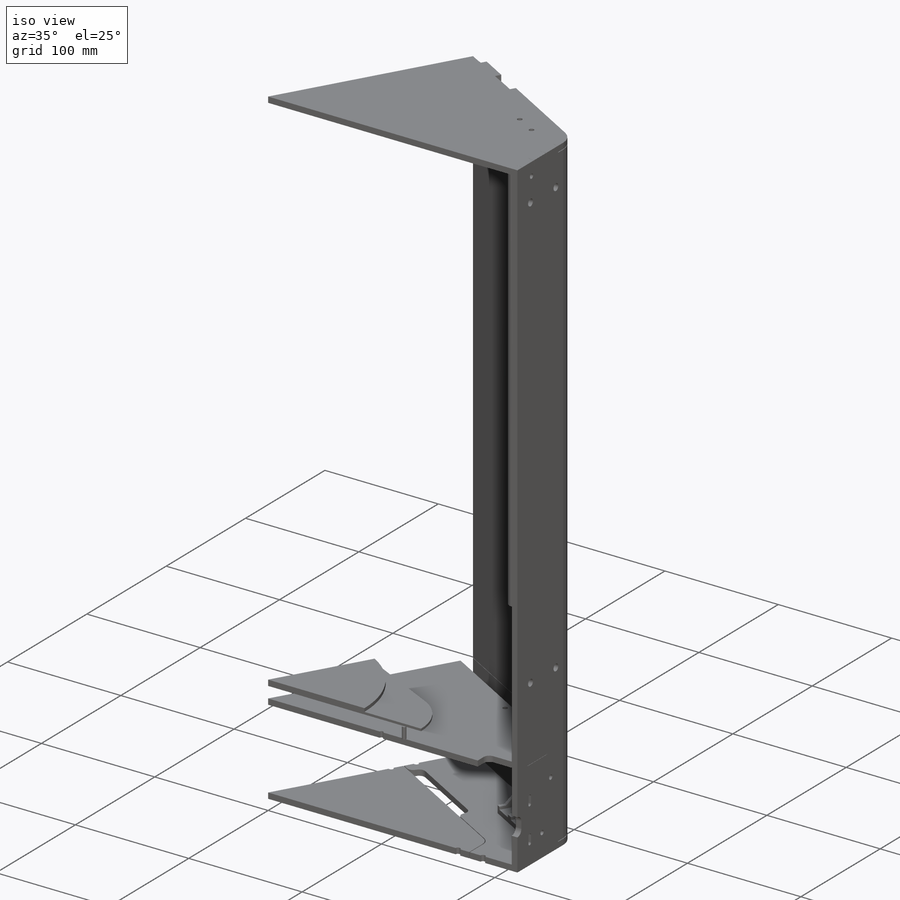
[diagram: iso view]
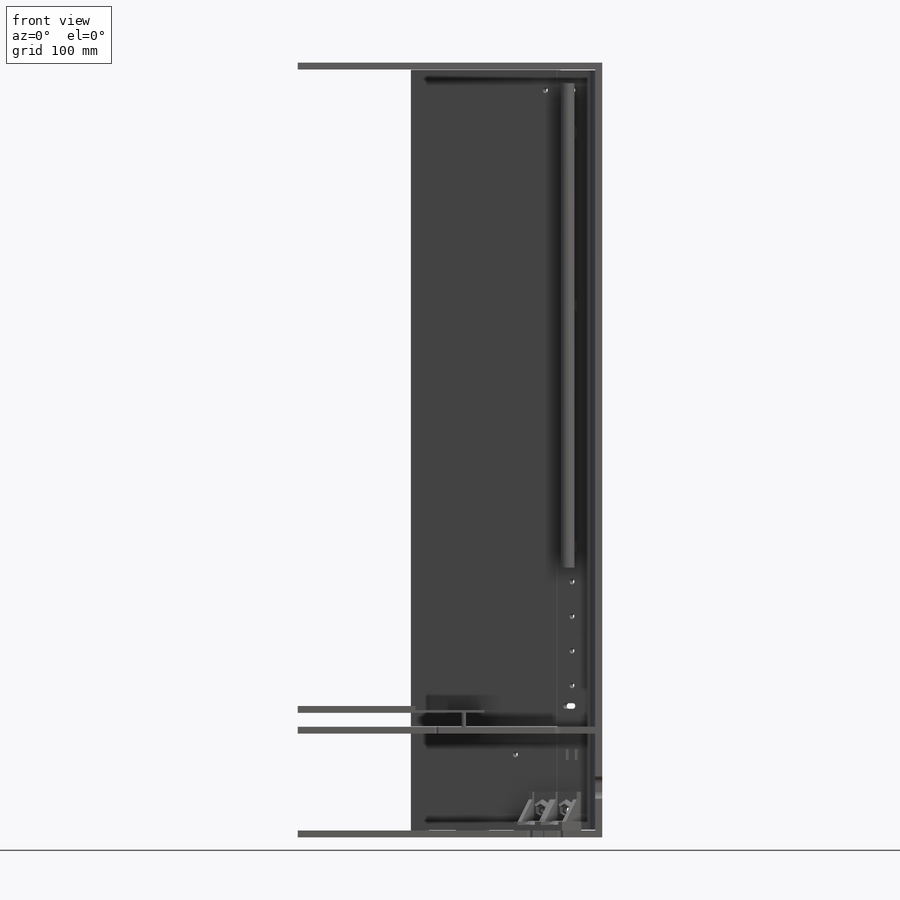
[diagram: front view]
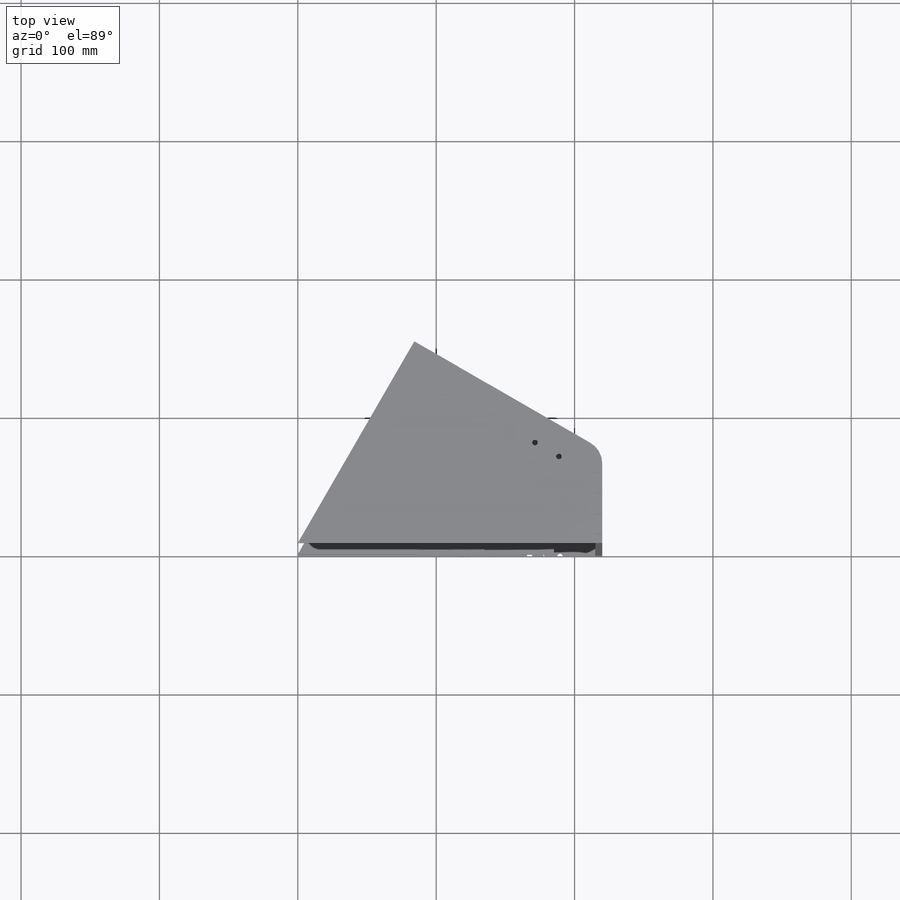
[diagram: top view]
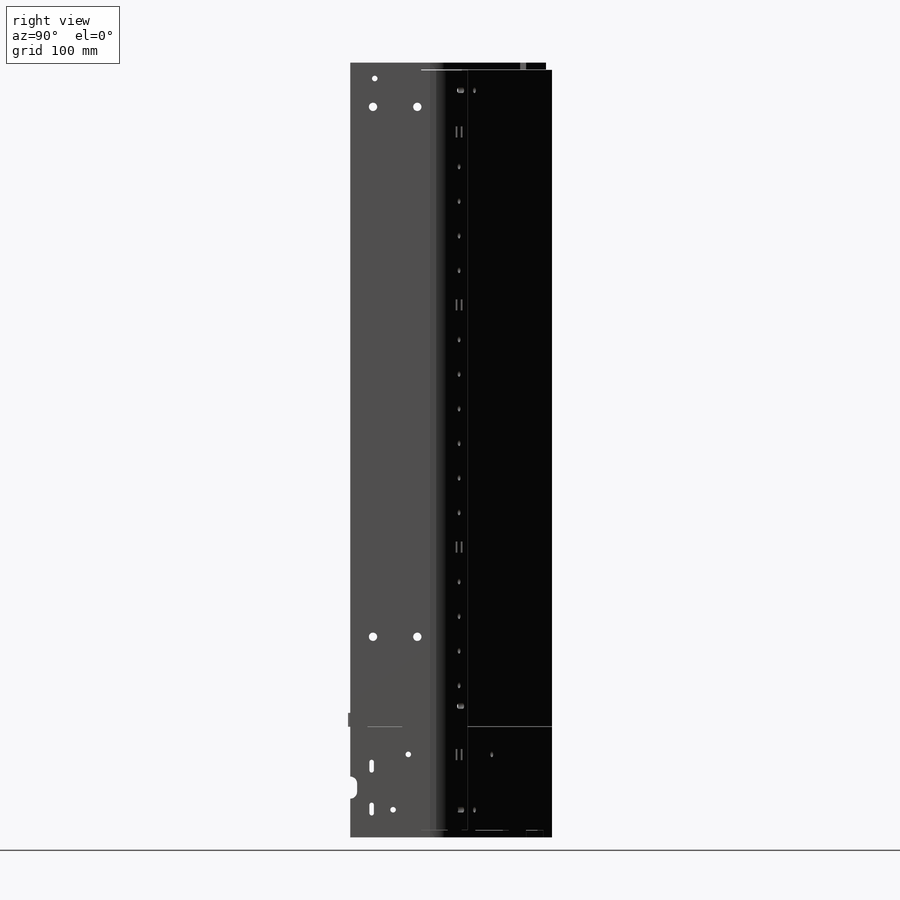
[diagram: right view]
SOLIDWORKS PART (.sldprt)
format: sldprt  version: not decoded by parser v0  size: 2,007,040 bytes
history: native  units: mm
features: sketch x44, cut_extrude x28, extrude x13, chamfer x3, fillet x2, material x1, plane x1, revolve x1, surface_op x1, pattern_linear x1, mirror x1 (+20 scaffold rows collapsed; 8 parser-record rows omitted)
feature tree (124):
  scaffold x20  (default folders/planes/origin — collapsed)
  material  "Material <not specified>"
  sketch  "Sketch1"  dims[c1.D1=45.0mm c1.D2=25.0mm c1.D3=195.0mm c1.D4=~158.022694mm c2.D4=60.0deg c3.D4=101.62mm c4.D4=60.0deg c4.D5=200.0mm]
  plane  "Plane1"
  sketch  "Sketch2"  dims[D1=100.0mm D2=350.0mm D3=32.5mm D4=5.0mm]
  revolve  "Revolve1"  Angle=360deg
  parser-record x8  (decoder bookkeeping rows leaked as tree rows — omitted from the tree; the rows remain in map.json)
  sketch  "Sketch3"  dims[c1.D2=400.0mm c1.D1=35.0mm c1.D3=~342.953809mm c2.D3=30.0deg c2.D2=25.0mm]
  extrude  "Boss-Extrude1"  Depth=5mm
  fillet  "Fillet1"  Radius=17mm
  sketch  "Sketch50"  dims[D1=12.5mm D2=5.0mm D3=25.0mm D4=25.0mm]
  cut_extrude  "Cut-Extrude30"  [1 undecoded]
  sketch  "Sketch4"  dims[D1=30.0mm]
  surface_op  "Surface-Extrude1"
  sketch  "Sketch23"  dims[D1=0.0mm]
  extrude  "Boss-Extrude7"  Depth=5mm
  sketch  "Sketch5"  dims[D1=5.0mm D2=15.0mm D3=30.0mm]
  cut_extrude  "Cut-Extrude1"  [1 undecoded]
  sketch  "Sketch7"  dims[D1=0.1mm D2=0.1mm]
  extrude  "Boss-Extrude2"  [1 undecoded]
  sketch  "Sketch22"  dims[D1=0.5mm D2=0.5mm]
  cut_extrude  "Cut-Extrude8"  [1 undecoded]
  sketch  "Sketch8"  dims[D1=170.0mm D2=40.0mm]
  extrude  "Boss-Extrude3"  Depth=3mm
  sketch  "Sketch9"  dims[D2=10.0mm D1=5.0mm]
  extrude  "Boss-Extrude4"  Depth=2mm
  sketch  "Sketch10"  dims[D1=170.0mm]
  cut_extrude  "Cut-Extrude2"  [1 undecoded]
  sketch  "Sketch11"  dims[D1=3.25mm D2=120.0mm]
  extrude  "Boss-Extrude5"  Depth=10mm
  sketch  "Sketch12"  dims[D2=15.0mm D3=25.0mm D4=12.5mm D1=0.0mm]
  extrude  "Boss-Extrude6"  Depth=5mm
  sketch  "Sketch40"  dims[D1=5.0mm D2=30.0mm]
  cut_extrude  "Cut-Extrude21"  [1 undecoded]
  sketch  "Sketch13"  dims[c1.D2=0.1mm c1.D3=0.1mm c1.D1=0.2mm c2.D2=5.0mm c2.D3=5.0mm c2.D4=~3.040041mm c2.D1=0.0mm]
  cut_extrude  "Cut-Extrude4"  [1 undecoded]
  sketch  "Sketch14"  dims[D1=3.25mm D2=3.25mm D5=5.0mm D3=31.0mm D4=31.0mm D6=34.0mm D7=6.0mm D8=8.5mm]
  cut_extrude  "Cut-Extrude5"  Depth=10mm
  sketch  "Sketch21"  dims[D1=~29.810374mm D2=31.0mm D3=15.0mm]
  cut_extrude  "Cut-Extrude7"  [1 undecoded]
  sketch  "Sketch24"  dims[c1.D1=15.0mm c1.D2=40.0mm c1.D3=0.25mm c1.D4=0.25mm c2.D1=0.25mm c2.D5=0.25mm c2.D7=0.1mm c2.D8=0.1mm c3.D7=0.1mm c3.D6=0.1mm]
  extrude  "Boss-Extrude8"  Depth=5mm
  sketch  "Sketch27"  dims[D1=4.0mm D7=6.0mm D2=6.5mm D3=17.75mm D4=15.0mm D5=42.0mm D6=27.0mm D8=32.0mm D9=383.0mm]
  cut_extrude  "Cut-Extrude10"  Depth=5mm
  sketch  "Sketch25"  dims[D1=4.0mm D4=4.0mm D2=15.0mm D3=31.0mm D5=25.5mm D6=15.0mm D7=15.0mm D8=20.0mm]
  cut_extrude  "Cut-Extrude9"  [1 undecoded]
  sketch  "Sketch41"  dims[c1.D1=2.0mm c1.D2=4.0mm c2.D1=22.0mm]
  cut_extrude  "Cut-Extrude22"  [1 undecoded]
  sketch  "Sketch42"  dims[c1.D2=10.0mm c1.D3=42.0mm c1.D4=~0.486782mm c1.D1=60.0mm c2.D4=0.5mm]
  cut_extrude  "Cut-Extrude23"  [1 undecoded]
  sketch  "Sketch20"  dims[c1.D1=10.0mm c1.D2=100.0mm c1.D3=10.0mm c2.D2=30.0mm c2.D4=~17.581572mm c2.D5=~11.487284mm]
  cut_extrude  "Cut-Extrude6"  Depth=10mm
  fillet  "Fillet2"  Radius=5mm
  sketch  "Sketch43"  dims[D3=4.0mm D1=20.0mm D2=9.75mm]
  cut_extrude  "Cut-Extrude24"  [1 undecoded]
  sketch  "Sketch28"
  cut_extrude  "Cut-Extrude11"  [1 undecoded]
  sketch  "Sketch29"  dims[c1.D3=4.0mm c1.D5=~6.317504mm c1.D1=15.0mm c1.D2=20.0mm c1.D4=20.0mm c2.D5=15.0mm c2.D6=15.0mm c2.D7=35.0mm c2.D8=6.0mm c2.D9=6.0mm]
  cut_extrude  "Cut-Extrude12"  [1 undecoded]
  sketch  "Sketch44"  dims[D2=4.0mm D1=25.0mm D3=25.0mm]
  cut_extrude  "Cut-Extrude25"  [1 undecoded]
  pattern_linear  "LPattern1"  Count1=10 Count2=1 Spacing1=25mm Spacing2=25mm
  sketch  "Sketch47"
  cut_extrude  "Cut-Extrude28"  [1 undecoded]
  sketch  "Sketch45"  dims[D1=5.0mm D2=8.0mm D3=2.5mm D4=25.0mm D5=~25.626163mm]
  cut_extrude  "Cut-Extrude26"  Depth=10mm
  sketch  "Sketch51"  dims[D1=15.0mm]
  cut_extrude  "Cut-Extrude31"  [1 undecoded]
  sketch  "Sketch31"  dims[D2=4.0mm D6=3.0mm D1=15.0mm D3=42.0mm D4=15.0mm D5=35.0mm D7=100.0mm]
  cut_extrude  "Cut-Extrude14"  [1 undecoded]
  sketch  "Sketch30"  dims[D3=~3.847159mm D2=15.0mm D1=0.25mm]
  extrude  "Boss-Extrude9"  Depth=5mm
  sketch  "Sketch52"  dims[D1=25.0mm]
  cut_extrude  "Cut-Extrude32"  [1 undecoded]
  sketch  "Sketch48"  dims[D1=0.5mm]
  extrude  "Boss-Extrude13"  [1 undecoded]
  sketch  "Sketch49"  dims[D1=25.0mm]
  cut_extrude  "Cut-Extrude29"  [1 undecoded]
  sketch  "Sketch32"  dims[D1=28.0mm D2=40.0mm]
  extrude  "Boss-Extrude10"  Depth=28mm
  sketch  "Sketch33"  dims[D1=6.4mm D2=6.4mm D3=5.5mm]
  cut_extrude  "Cut-Extrude15"  [1 undecoded]
  sketch  "Sketch34"  dims[D1=4.0mm D2=5.0mm D3=3.0mm D4=3.0mm D5=3.0mm]
  cut_extrude  "Cut-Extrude16"  Depth=4mm
  sketch  "Sketch35"  dims[D1=20.0mm]
  cut_extrude  "Cut-Extrude17"  [1 undecoded]
  sketch  "Sketch36"  dims[D1=7.25mm D2=3.0mm D3=3.0mm]
  extrude  "Boss-Extrude11"  Depth=3mm
  chamfer  "Chamfer1"  Distance=2.75mm Angle=45deg
  sketch  "Sketch37"  dims[D1=0.0mm D2=0.0mm]
  sketch  "Sketch38"  dims[D1=0.25mm D2=0.0mm D3=0.25mm]
  extrude  "Boss-Extrude12"  Depth=0.5mm
  cut_extrude  "Cut-Extrude18"  Depth=1mm
  chamfer  "Chamfer2"  Distance=0.125mm Angle=45deg
  sketch  "Sketch39"
  cut_extrude  "Cut-Extrude20"  [1 undecoded]
  mirror  "Mirror1"
  chamfer  "Chamfer3"  Distance=0.25mm Angle=45deg
decode coverage: 65 of 94 modeling features carry decoded parameters
note: ~ marks probable driven/reference dimensions
note: 24 parameter values undecoded
summary: no parameter record found for 24 features
note: suppression state not decoded; provenance and decode notes live in map.json
